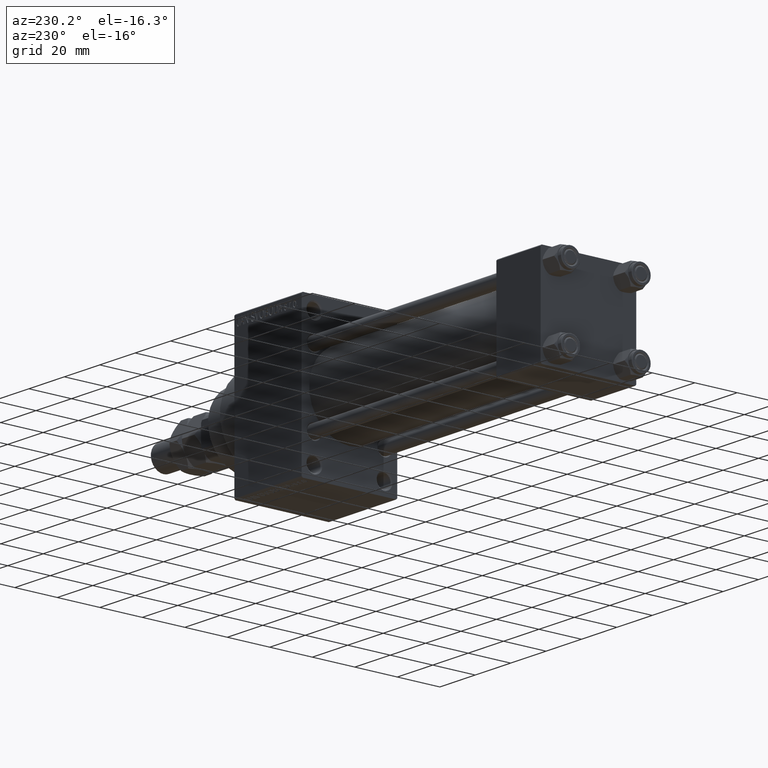
[diagram: clean part render]
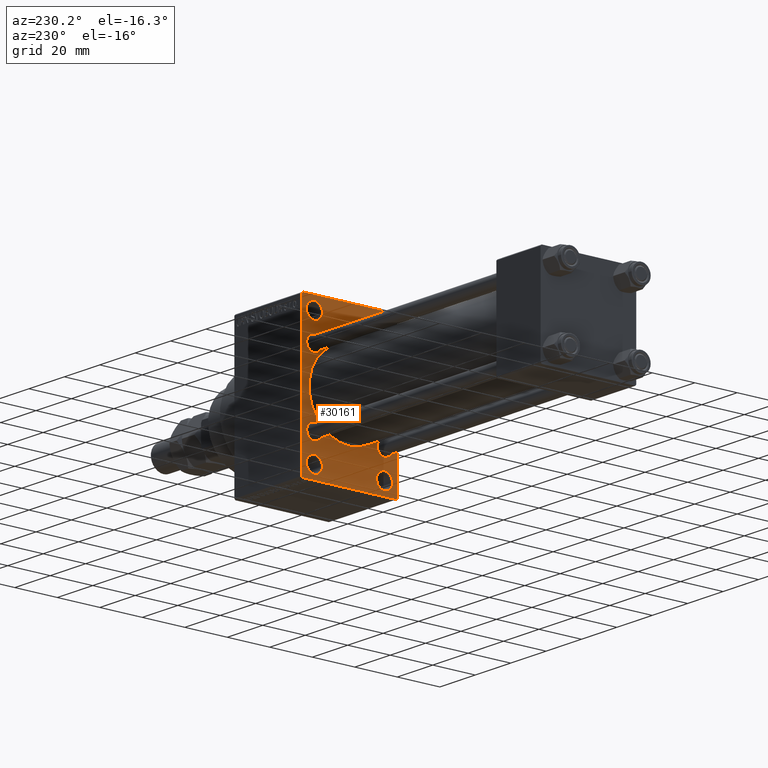
[diagram: same view with one face highlighted and labeled with its STEP entity id]
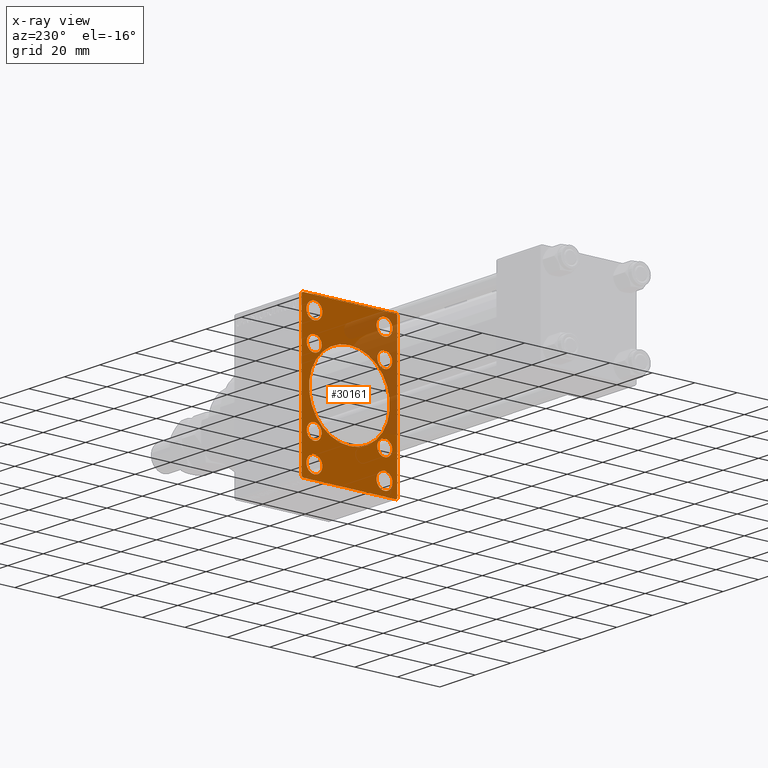
[diagram: x-ray of the same camera — body ghosted, the highlighted face saturated]
A machine part, auxiliary view. The second image highlights one B-rep face of the part: STEP entity #30161.
The next image is the same camera in x-ray: the body ghosted, the highlighted face saturated — about 24% of this face is hidden behind the body in this view.
In plain terms, the highlighted planar face has unit normal (-1, 0, 0).
Its self-contained STEP definition (entity closure, byte-faithful):
#82 = CARTESIAN_POINT ( 'NONE',  ( 135.0000000000000000, -16.50000000000000000, 29.00000000000000711 ) ) ;
#376 = CARTESIAN_POINT ( 'NONE',  ( 135.0000000000000000, -16.59999999999999076, 13.10000000000000142 ) ) ;
#406 = VERTEX_POINT ( 'NONE', #11086 ) ;
#469 = CARTESIAN_POINT ( 'NONE',  ( 135.0000000000000000, -16.59999999999999076, -16.60000000000000853 ) ) ;
#551 = DIRECTION ( 'NONE',  ( -0.000000000000000000, 0.7071067811865279218, 0.7071067811865671127 ) ) ;
#690 = VECTOR ( 'NONE', #28109, 1000.000000000000114 ) ;
#798 = LINE ( 'NONE', #42165, #41593 ) ;
#811 = CARTESIAN_POINT ( 'NONE',  ( 135.0000000000000000, 16.50000000000000000, -28.99999999999999289 ) ) ;
#864 = FACE_BOUND ( 'NONE', #41058, .T. ) ;
#1304 = DIRECTION ( 'NONE',  ( 0.000000000000000000, 0.000000000000000000, 1.000000000000000000 ) ) ;
#1363 = ORIENTED_EDGE ( 'NONE', *, *, #21850, .T. ) ;
#1622 = EDGE_CURVE ( 'NONE', #2273, #13265, #16459, .T. ) ;
#2264 = CARTESIAN_POINT ( 'NONE',  ( 135.0000000000000000, 28.49999999999999645, 28.49999999999999645 ) ) ;
#2273 = VERTEX_POINT ( 'NONE', #35290 ) ;
#2284 = CARTESIAN_POINT ( 'NONE',  ( 135.0000000000000000, 16.59999999999999787, -16.60000000000000497 ) ) ;
#2686 = CIRCLE ( 'NONE', #5829, 3.750000000000006661 ) ;
#2705 = DIRECTION ( 'NONE',  ( 0.000000000000000000, 0.000000000000000000, 1.000000000000000000 ) ) ;
#2715 = ORIENTED_EDGE ( 'NONE', *, *, #12636, .F. ) ;
#2808 = ORIENTED_EDGE ( 'NONE', *, *, #42500, .T. ) ;
#2978 = VECTOR ( 'NONE', #22222, 1000.000000000000000 ) ;
#3551 = DIRECTION ( 'NONE',  ( 0.000000000000000000, 0.000000000000000000, 1.000000000000000000 ) ) ;
#3696 = EDGE_CURVE ( 'NONE', #40230, #32612, #30169, .T. ) ;
#3712 = ORIENTED_EDGE ( 'NONE', *, *, #21955, .T. ) ;
#3796 = EDGE_CURVE ( 'NONE', #39860, #19220, #35709, .T. ) ;
#4087 = FACE_BOUND ( 'NONE', #9784, .T. ) ;
#4392 = CARTESIAN_POINT ( 'NONE',  ( 135.0000000000000000, 16.59999999999999787, -20.10000000000000853 ) ) ;
#4540 = VERTEX_POINT ( 'NONE', #4392 ) ;
#4595 = CARTESIAN_POINT ( 'NONE',  ( 135.0000000000000000, -2.602085213965210642E-15, 0.000000000000000000 ) ) ;
#4913 = CARTESIAN_POINT ( 'NONE',  ( 135.0000000000000000, -16.59999999999999076, -13.10000000000000142 ) ) ;
#5091 = LINE ( 'NONE', #20100, #14610 ) ;
#5143 = EDGE_CURVE ( 'NONE', #13171, #5461, #33372, .T. ) ;
#5206 = CARTESIAN_POINT ( 'NONE',  ( 135.0000000000000000, -16.50000000000000000, -32.75000000000000000 ) ) ;
#5431 = CARTESIAN_POINT ( 'NONE',  ( 135.0000000000000000, -2.752562955852396712E-16, -19.00000000000000000 ) ) ;
#5461 = VERTEX_POINT ( 'NONE', #22599 ) ;
#5628 = CIRCLE ( 'NONE', #25245, 3.750000000000006661 ) ;
#5829 = AXIS2_PLACEMENT_3D ( 'NONE', #28136, #28844, #10149 ) ;
#6039 = AXIS2_PLACEMENT_3D ( 'NONE', #2284, #17293, #9910 ) ;
#6045 = DIRECTION ( 'NONE',  ( 0.000000000000000000, 0.000000000000000000, 1.000000000000000000 ) ) ;
#6087 = CIRCLE ( 'NONE', #23366, 3.500000000000006661 ) ;
#6418 = DIRECTION ( 'NONE',  ( 0.000000000000000000, 0.000000000000000000, 1.000000000000000000 ) ) ;
#6439 = DIRECTION ( 'NONE',  ( 0.000000000000000000, 0.000000000000000000, 1.000000000000000000 ) ) ;
#6603 = DIRECTION ( 'NONE',  ( 1.000000000000000000, 0.000000000000000000, 0.000000000000000000 ) ) ;
#6657 = CARTESIAN_POINT ( 'NONE',  ( 135.0000000000000000, -22.00000000000001776, 35.00000000000000000 ) ) ;
#6966 = CIRCLE ( 'NONE', #34487, 3.750000000000003553 ) ;
#7216 = CARTESIAN_POINT ( 'NONE',  ( 135.0000000000000000, 16.50000000000000000, 25.25000000000000355 ) ) ;
#7289 = PLANE ( 'NONE',  #48169 ) ;
#7539 = DIRECTION ( 'NONE',  ( -1.000000000000000000, 0.000000000000000000, -0.000000000000000000 ) ) ;
#7750 = EDGE_CURVE ( 'NONE', #21228, #48277, #5091, .T. ) ;
#7973 = CARTESIAN_POINT ( 'NONE',  ( 135.0000000000000000, -16.59999999999999076, 20.10000000000001208 ) ) ;
#8384 = CARTESIAN_POINT ( 'NONE',  ( 135.0000000000000000, 16.59999999999999787, 13.09999999999999609 ) ) ;
#8543 = DIRECTION ( 'NONE',  ( 0.000000000000000000, 0.000000000000000000, -1.000000000000000000 ) ) ;
#8568 = ORIENTED_EDGE ( 'NONE', *, *, #32368, .T. ) ;
#8924 = LINE ( 'NONE', #2264, #690 ) ;
#9732 = VERTEX_POINT ( 'NONE', #28626 ) ;
#9784 = EDGE_LOOP ( 'NONE', ( #28725, #16930 ) ) ;
#9910 = DIRECTION ( 'NONE',  ( 0.000000000000000000, 0.000000000000000000, 1.000000000000000000 ) ) ;
#9939 = CIRCLE ( 'NONE', #13095, 3.500000000000006661 ) ;
#10123 = ORIENTED_EDGE ( 'NONE', *, *, #24466, .T. ) ;
#10149 = DIRECTION ( 'NONE',  ( 0.000000000000000000, 0.000000000000000000, 1.000000000000000000 ) ) ;
#10289 = CARTESIAN_POINT ( 'NONE',  ( 135.0000000000000000, -22.50000000000000355, -34.50000000000000000 ) ) ;
#10386 = AXIS2_PLACEMENT_3D ( 'NONE', #14266, #24870, #2705 ) ;
#10402 = CARTESIAN_POINT ( 'NONE',  ( 135.0000000000000000, -22.50000000000000355, 34.50000000000000000 ) ) ;
#10451 = EDGE_CURVE ( 'NONE', #19220, #39860, #6087, .T. ) ;
#10453 = CIRCLE ( 'NONE', #19876, 3.500000000000003109 ) ;
#10656 = CARTESIAN_POINT ( 'NONE',  ( 135.0000000000000000, 16.50000000000000000, 29.00000000000000355 ) ) ;
#11086 = CARTESIAN_POINT ( 'NONE',  ( 135.0000000000000000, 22.49999999999999645, -34.50000000000000000 ) ) ;
#11663 = CARTESIAN_POINT ( 'NONE',  ( 135.0000000000000000, 16.50000000000000000, 32.75000000000000000 ) ) ;
#11686 = DIRECTION ( 'NONE',  ( 1.000000000000000000, 0.000000000000000000, 0.000000000000000000 ) ) ;
#12013 = CARTESIAN_POINT ( 'NONE',  ( 135.0000000000000000, -28.49999999999999645, -28.49999999999999645 ) ) ;
#12066 = EDGE_LOOP ( 'NONE', ( #40172, #45711 ) ) ;
#12166 = AXIS2_PLACEMENT_3D ( 'NONE', #19702, #40695, #34472 ) ;
#12204 = ORIENTED_EDGE ( 'NONE', *, *, #1622, .T. ) ;
#12430 = VERTEX_POINT ( 'NONE', #37367 ) ;
#12481 = EDGE_CURVE ( 'NONE', #13265, #48277, #38093, .T. ) ;
#12636 = EDGE_CURVE ( 'NONE', #40926, #21528, #22468, .T. ) ;
#12656 = DIRECTION ( 'NONE',  ( 0.000000000000000000, 0.000000000000000000, 1.000000000000000000 ) ) ;
#13095 = AXIS2_PLACEMENT_3D ( 'NONE', #469, #45537, #21899 ) ;
#13171 = VERTEX_POINT ( 'NONE', #5431 ) ;
#13265 = VERTEX_POINT ( 'NONE', #43809 ) ;
#13549 = ORIENTED_EDGE ( 'NONE', *, *, #7750, .F. ) ;
#13561 = CARTESIAN_POINT ( 'NONE',  ( 135.0000000000000000, -16.50000000000000000, -28.99999999999999289 ) ) ;
#13703 = AXIS2_PLACEMENT_3D ( 'NONE', #10656, #41158, #26151 ) ;
#13870 = CARTESIAN_POINT ( 'NONE',  ( 135.0000000000000000, 16.59999999999999787, 16.60000000000000497 ) ) ;
#13985 = VECTOR ( 'NONE', #15466, 1000.000000000000114 ) ;
#14021 = EDGE_LOOP ( 'NONE', ( #1363, #45147 ) ) ;
#14067 = VERTEX_POINT ( 'NONE', #7973 ) ;
#14266 = CARTESIAN_POINT ( 'NONE',  ( 135.0000000000000000, 16.59999999999999787, -16.60000000000000497 ) ) ;
#14427 = EDGE_LOOP ( 'NONE', ( #12204, #32005, #13549, #15347, #2715, #40725, #44163, #27264 ) ) ;
#14580 = DIRECTION ( 'NONE',  ( 0.000000000000000000, 0.000000000000000000, 1.000000000000000000 ) ) ;
#14610 = VECTOR ( 'NONE', #8543, 1000.000000000000000 ) ;
#14918 = CARTESIAN_POINT ( 'NONE',  ( 135.0000000000000000, 0.000000000000000000, 0.000000000000000000 ) ) ;
#14929 = CARTESIAN_POINT ( 'NONE',  ( 135.0000000000000000, 16.59999999999999787, -13.09999999999999787 ) ) ;
#15347 = ORIENTED_EDGE ( 'NONE', *, *, #18227, .T. ) ;
#15406 = FACE_BOUND ( 'NONE', #14021, .T. ) ;
#15466 = DIRECTION ( 'NONE',  ( 0.000000000000000000, -0.7071067811865474617, 0.7071067811865474617 ) ) ;
#15560 = ORIENTED_EDGE ( 'NONE', *, *, #5143, .T. ) ;
#15589 = VERTEX_POINT ( 'NONE', #35635 ) ;
#15847 = AXIS2_PLACEMENT_3D ( 'NONE', #13561, #36439, #27843 ) ;
#15895 = FACE_BOUND ( 'NONE', #25672, .T. ) ;
#16459 = LINE ( 'NONE', #26790, #17530 ) ;
#16566 = CARTESIAN_POINT ( 'NONE',  ( 135.0000000000000000, 22.49999999999999645, 35.00000000000000000 ) ) ;
#16930 = ORIENTED_EDGE ( 'NONE', *, *, #3696, .T. ) ;
#17069 = CIRCLE ( 'NONE', #6039, 3.500000000000006661 ) ;
#17293 = DIRECTION ( 'NONE',  ( 1.000000000000000000, 0.000000000000000000, 0.000000000000000000 ) ) ;
#17351 = CARTESIAN_POINT ( 'NONE',  ( 135.0000000000000000, -16.50000000000000000, 29.00000000000000711 ) ) ;
#17359 = CIRCLE ( 'NONE', #31506, 3.500000000000006661 ) ;
#17507 = CARTESIAN_POINT ( 'NONE',  ( 135.0000000000000000, -16.59999999999999076, 16.60000000000000853 ) ) ;
#17530 = VECTOR ( 'NONE', #20144, 1000.000000000000000 ) ;
#17632 = EDGE_LOOP ( 'NONE', ( #8568, #15560 ) ) ;
#17921 = DIRECTION ( 'NONE',  ( 0.000000000000000000, 0.000000000000000000, 1.000000000000000000 ) ) ;
#18227 = EDGE_CURVE ( 'NONE', #21228, #21528, #798, .T. ) ;
#18242 = VERTEX_POINT ( 'NONE', #45122 ) ;
#18400 = EDGE_CURVE ( 'NONE', #40926, #18242, #8924, .T. ) ;
#18606 = FACE_BOUND ( 'NONE', #12066, .T. ) ;
#19078 = ORIENTED_EDGE ( 'NONE', *, *, #25184, .T. ) ;
#19220 = VERTEX_POINT ( 'NONE', #19767 ) ;
#19702 = CARTESIAN_POINT ( 'NONE',  ( 135.0000000000000000, -2.602085213965210642E-15, 0.000000000000000000 ) ) ;
#19767 = CARTESIAN_POINT ( 'NONE',  ( 135.0000000000000000, 16.59999999999999787, 20.10000000000001208 ) ) ;
#19876 = AXIS2_PLACEMENT_3D ( 'NONE', #17507, #20973, #6439 ) ;
#20100 = CARTESIAN_POINT ( 'NONE',  ( 135.0000000000000000, -22.50000000000000355, 35.00000000000000000 ) ) ;
#20144 = DIRECTION ( 'NONE',  ( 0.000000000000000000, -1.000000000000000000, 0.000000000000000000 ) ) ;
#20958 = CIRCLE ( 'NONE', #28813, 3.750000000000000000 ) ;
#20973 = DIRECTION ( 'NONE',  ( 1.000000000000000000, 0.000000000000000000, 0.000000000000000000 ) ) ;
#21228 = VERTEX_POINT ( 'NONE', #10402 ) ;
#21528 = VERTEX_POINT ( 'NONE', #6657 ) ;
#21531 = ORIENTED_EDGE ( 'NONE', *, *, #10451, .T. ) ;
#21729 = DIRECTION ( 'NONE',  ( 1.000000000000000000, 0.000000000000000000, 0.000000000000000000 ) ) ;
#21734 = DIRECTION ( 'NONE',  ( 0.000000000000000000, 0.000000000000000000, 1.000000000000000000 ) ) ;
#21850 = EDGE_CURVE ( 'NONE', #14067, #41499, #36983, .T. ) ;
#21872 = EDGE_LOOP ( 'NONE', ( #24750, #10123 ) ) ;
#21899 = DIRECTION ( 'NONE',  ( 0.000000000000000000, 0.000000000000000000, 1.000000000000000000 ) ) ;
#21955 = EDGE_CURVE ( 'NONE', #45136, #47219, #17359, .T. ) ;
#22222 = DIRECTION ( 'NONE',  ( 0.000000000000000000, -1.000000000000000000, 0.000000000000000000 ) ) ;
#22468 = LINE ( 'NONE', #25927, #2978 ) ;
#22489 = ORIENTED_EDGE ( 'NONE', *, *, #32628, .T. ) ;
#22599 = CARTESIAN_POINT ( 'NONE',  ( 135.0000000000000000, -2.602085213965210642E-15, 19.00000000000000000 ) ) ;
#22689 = CARTESIAN_POINT ( 'NONE',  ( 135.0000000000000000, 16.50000000000000000, 29.00000000000000355 ) ) ;
#22696 = CARTESIAN_POINT ( 'NONE',  ( 135.0000000000000000, -16.59999999999999076, -16.60000000000000853 ) ) ;
#23098 = AXIS2_PLACEMENT_3D ( 'NONE', #4595, #27222, #23281 ) ;
#23281 = DIRECTION ( 'NONE',  ( 0.000000000000000000, 0.000000000000000000, -1.000000000000000000 ) ) ;
#23366 = AXIS2_PLACEMENT_3D ( 'NONE', #40312, #6603, #17921 ) ;
#24466 = EDGE_CURVE ( 'NONE', #9732, #47161, #24527, .T. ) ;
#24527 = CIRCLE ( 'NONE', #46576, 3.750000000000006661 ) ;
#24750 = ORIENTED_EDGE ( 'NONE', *, *, #27149, .T. ) ;
#24800 = EDGE_LOOP ( 'NONE', ( #21531, #24926 ) ) ;
#24870 = DIRECTION ( 'NONE',  ( 1.000000000000000000, 0.000000000000000000, 0.000000000000000000 ) ) ;
#24926 = ORIENTED_EDGE ( 'NONE', *, *, #3796, .T. ) ;
#25118 = CARTESIAN_POINT ( 'NONE',  ( 135.0000000000000000, 16.50000000000000000, -28.99999999999999289 ) ) ;
#25184 = EDGE_CURVE ( 'NONE', #4540, #42248, #45759, .T. ) ;
#25190 = EDGE_LOOP ( 'NONE', ( #28236, #19078 ) ) ;
#25245 = AXIS2_PLACEMENT_3D ( 'NONE', #25118, #47295, #6418 ) ;
#25672 = EDGE_LOOP ( 'NONE', ( #3712, #28420 ) ) ;
#25927 = CARTESIAN_POINT ( 'NONE',  ( 135.0000000000000000, 22.49999999999999645, 35.00000000000000000 ) ) ;
#26151 = DIRECTION ( 'NONE',  ( 0.000000000000000000, 0.000000000000000000, 1.000000000000000000 ) ) ;
#26595 = CARTESIAN_POINT ( 'NONE',  ( 135.0000000000000000, 21.99999999999999645, 35.00000000000000000 ) ) ;
#26719 = FACE_BOUND ( 'NONE', #24800, .T. ) ;
#26790 = CARTESIAN_POINT ( 'NONE',  ( 135.0000000000000000, 22.49999999999999645, -35.00000000000000000 ) ) ;
#27149 = EDGE_CURVE ( 'NONE', #47161, #9732, #5628, .T. ) ;
#27158 = DIRECTION ( 'NONE',  ( 1.000000000000000000, 0.000000000000000000, 0.000000000000000000 ) ) ;
#27222 = DIRECTION ( 'NONE',  ( 1.000000000000000000, 0.000000000000000000, 0.000000000000000000 ) ) ;
#27248 = EDGE_CURVE ( 'NONE', #15589, #43226, #27636, .T. ) ;
#27264 = ORIENTED_EDGE ( 'NONE', *, *, #48143, .T. ) ;
#27544 = DIRECTION ( 'NONE',  ( -0.000000000000000000, -0.7071067811865279218, -0.7071067811865671127 ) ) ;
#27636 = CIRCLE ( 'NONE', #15847, 3.750000000000006661 ) ;
#27843 = DIRECTION ( 'NONE',  ( 0.000000000000000000, 0.000000000000000000, 1.000000000000000000 ) ) ;
#28028 = LINE ( 'NONE', #47003, #41661 ) ;
#28109 = DIRECTION ( 'NONE',  ( 0.000000000000000000, 0.7071067811865474617, -0.7071067811865474617 ) ) ;
#28122 = DIRECTION ( 'NONE',  ( 0.000000000000000000, 0.000000000000000000, -1.000000000000000000 ) ) ;
#28136 = CARTESIAN_POINT ( 'NONE',  ( 135.0000000000000000, -16.50000000000000000, -28.99999999999999289 ) ) ;
#28236 = ORIENTED_EDGE ( 'NONE', *, *, #42992, .T. ) ;
#28420 = ORIENTED_EDGE ( 'NONE', *, *, #38620, .T. ) ;
#28626 = CARTESIAN_POINT ( 'NONE',  ( 135.0000000000000000, 16.50000000000000000, -32.75000000000000000 ) ) ;
#28725 = ORIENTED_EDGE ( 'NONE', *, *, #47426, .T. ) ;
#28813 = AXIS2_PLACEMENT_3D ( 'NONE', #17351, #40715, #6045 ) ;
#28844 = DIRECTION ( 'NONE',  ( 1.000000000000000000, 0.000000000000000000, 0.000000000000000000 ) ) ;
#29216 = CARTESIAN_POINT ( 'NONE',  ( 135.0000000000000000, 16.50000000000000000, -25.24999999999998934 ) ) ;
#29796 = EDGE_CURVE ( 'NONE', #41499, #14067, #10453, .T. ) ;
#29916 = DIRECTION ( 'NONE',  ( -0.000000000000000000, 0.000000000000000000, 1.000000000000000000 ) ) ;
#30144 = VECTOR ( 'NONE', #28122, 1000.000000000000000 ) ;
#30161 = ADVANCED_FACE ( 'NONE', ( #864, #18606, #37793, #4087, #15406, #26719, #45448, #15895, #33625, #48656 ), #7289, .T. ) ;
#30169 = CIRCLE ( 'NONE', #13703, 3.750000000000003553 ) ;
#30191 = AXIS2_PLACEMENT_3D ( 'NONE', #82, #34053, #3551 ) ;
#30922 = CARTESIAN_POINT ( 'NONE',  ( 135.0000000000000000, -16.59999999999999076, -20.10000000000001208 ) ) ;
#31446 = VERTEX_POINT ( 'NONE', #35567 ) ;
#31506 = AXIS2_PLACEMENT_3D ( 'NONE', #22696, #21729, #40431 ) ;
#31853 = EDGE_CURVE ( 'NONE', #18242, #406, #46603, .T. ) ;
#32005 = ORIENTED_EDGE ( 'NONE', *, *, #12481, .T. ) ;
#32368 = EDGE_CURVE ( 'NONE', #5461, #13171, #42756, .T. ) ;
#32612 = VERTEX_POINT ( 'NONE', #11663 ) ;
#32628 = EDGE_CURVE ( 'NONE', #31446, #12430, #33326, .T. ) ;
#32927 = EDGE_CURVE ( 'NONE', #43226, #15589, #2686, .T. ) ;
#33326 = CIRCLE ( 'NONE', #30191, 3.750000000000000000 ) ;
#33372 = CIRCLE ( 'NONE', #12166, 19.00000000000000000 ) ;
#33625 = FACE_BOUND ( 'NONE', #17632, .T. ) ;
#34053 = DIRECTION ( 'NONE',  ( 1.000000000000000000, 0.000000000000000000, 0.000000000000000000 ) ) ;
#34472 = DIRECTION ( 'NONE',  ( 0.000000000000000000, 0.000000000000000000, -1.000000000000000000 ) ) ;
#34487 = AXIS2_PLACEMENT_3D ( 'NONE', #22689, #36736, #14580 ) ;
#35290 = CARTESIAN_POINT ( 'NONE',  ( 135.0000000000000000, 22.00000000000002132, -35.00000000000000000 ) ) ;
#35567 = CARTESIAN_POINT ( 'NONE',  ( 135.0000000000000000, -16.50000000000000000, 25.25000000000000711 ) ) ;
#35635 = CARTESIAN_POINT ( 'NONE',  ( 135.0000000000000000, -16.50000000000000000, -25.24999999999998934 ) ) ;
#35709 = CIRCLE ( 'NONE', #44338, 3.500000000000006661 ) ;
#36439 = DIRECTION ( 'NONE',  ( 1.000000000000000000, 0.000000000000000000, 0.000000000000000000 ) ) ;
#36736 = DIRECTION ( 'NONE',  ( 1.000000000000000000, 0.000000000000000000, 0.000000000000000000 ) ) ;
#36983 = CIRCLE ( 'NONE', #46466, 3.500000000000003109 ) ;
#37367 = CARTESIAN_POINT ( 'NONE',  ( 135.0000000000000000, -16.50000000000000000, 32.75000000000000711 ) ) ;
#37793 = FACE_BOUND ( 'NONE', #21872, .T. ) ;
#38093 = LINE ( 'NONE', #12013, #13985 ) ;
#38620 = EDGE_CURVE ( 'NONE', #47219, #45136, #9939, .T. ) ;
#39860 = VERTEX_POINT ( 'NONE', #8384 ) ;
#40172 = ORIENTED_EDGE ( 'NONE', *, *, #27248, .T. ) ;
#40230 = VERTEX_POINT ( 'NONE', #7216 ) ;
#40312 = CARTESIAN_POINT ( 'NONE',  ( 135.0000000000000000, 16.59999999999999787, 16.60000000000000497 ) ) ;
#40431 = DIRECTION ( 'NONE',  ( 0.000000000000000000, 0.000000000000000000, 1.000000000000000000 ) ) ;
#40695 = DIRECTION ( 'NONE',  ( 1.000000000000000000, 0.000000000000000000, 0.000000000000000000 ) ) ;
#40715 = DIRECTION ( 'NONE',  ( 1.000000000000000000, 0.000000000000000000, 0.000000000000000000 ) ) ;
#40725 = ORIENTED_EDGE ( 'NONE', *, *, #18400, .T. ) ;
#40926 = VERTEX_POINT ( 'NONE', #26595 ) ;
#41058 = EDGE_LOOP ( 'NONE', ( #2808, #22489 ) ) ;
#41158 = DIRECTION ( 'NONE',  ( 1.000000000000000000, 0.000000000000000000, 0.000000000000000000 ) ) ;
#41499 = VERTEX_POINT ( 'NONE', #376 ) ;
#41593 = VECTOR ( 'NONE', #551, 1000.000000000000000 ) ;
#41661 = VECTOR ( 'NONE', #27544, 1000.000000000000000 ) ;
#42165 = CARTESIAN_POINT ( 'NONE',  ( 135.0000000000000000, -28.50000000000062883, 28.49999999999905143 ) ) ;
#42248 = VERTEX_POINT ( 'NONE', #14929 ) ;
#42500 = EDGE_CURVE ( 'NONE', #12430, #31446, #20958, .T. ) ;
#42756 = CIRCLE ( 'NONE', #23098, 19.00000000000000000 ) ;
#42992 = EDGE_CURVE ( 'NONE', #42248, #4540, #17069, .T. ) ;
#43226 = VERTEX_POINT ( 'NONE', #5206 ) ;
#43809 = CARTESIAN_POINT ( 'NONE',  ( 135.0000000000000000, -21.99999999999998934, -35.00000000000000000 ) ) ;
#43911 = DIRECTION ( 'NONE',  ( 1.000000000000000000, 0.000000000000000000, 0.000000000000000000 ) ) ;
#44163 = ORIENTED_EDGE ( 'NONE', *, *, #31853, .T. ) ;
#44338 = AXIS2_PLACEMENT_3D ( 'NONE', #13870, #43911, #21734 ) ;
#45122 = CARTESIAN_POINT ( 'NONE',  ( 135.0000000000000000, 22.49999999999999645, 34.50000000000000000 ) ) ;
#45136 = VERTEX_POINT ( 'NONE', #4913 ) ;
#45147 = ORIENTED_EDGE ( 'NONE', *, *, #29796, .T. ) ;
#45448 = FACE_BOUND ( 'NONE', #25190, .T. ) ;
#45537 = DIRECTION ( 'NONE',  ( 1.000000000000000000, 0.000000000000000000, 0.000000000000000000 ) ) ;
#45711 = ORIENTED_EDGE ( 'NONE', *, *, #32927, .T. ) ;
#45759 = CIRCLE ( 'NONE', #10386, 3.500000000000006661 ) ;
#46401 = CARTESIAN_POINT ( 'NONE',  ( 135.0000000000000000, -16.59999999999999076, 16.60000000000000853 ) ) ;
#46466 = AXIS2_PLACEMENT_3D ( 'NONE', #46401, #11686, #12656 ) ;
#46576 = AXIS2_PLACEMENT_3D ( 'NONE', #811, #27158, #1304 ) ;
#46603 = LINE ( 'NONE', #16566, #30144 ) ;
#47003 = CARTESIAN_POINT ( 'NONE',  ( 135.0000000000000000, 28.50000000000061817, -28.49999999999904077 ) ) ;
#47161 = VERTEX_POINT ( 'NONE', #29216 ) ;
#47219 = VERTEX_POINT ( 'NONE', #30922 ) ;
#47295 = DIRECTION ( 'NONE',  ( 1.000000000000000000, 0.000000000000000000, 0.000000000000000000 ) ) ;
#47426 = EDGE_CURVE ( 'NONE', #32612, #40230, #6966, .T. ) ;
#48143 = EDGE_CURVE ( 'NONE', #406, #2273, #28028, .T. ) ;
#48169 = AXIS2_PLACEMENT_3D ( 'NONE', #14918, #7539, #29916 ) ;
#48277 = VERTEX_POINT ( 'NONE', #10289 ) ;
#48656 = FACE_OUTER_BOUND ( 'NONE', #14427, .T. ) ;